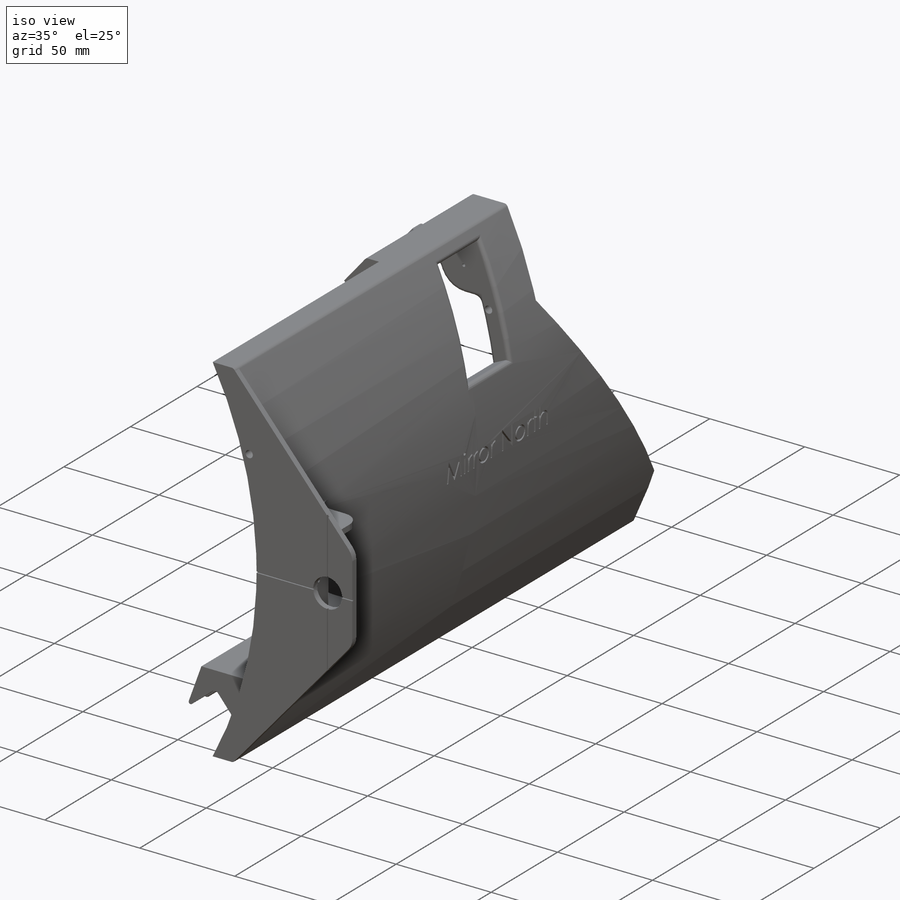
[diagram: iso view]
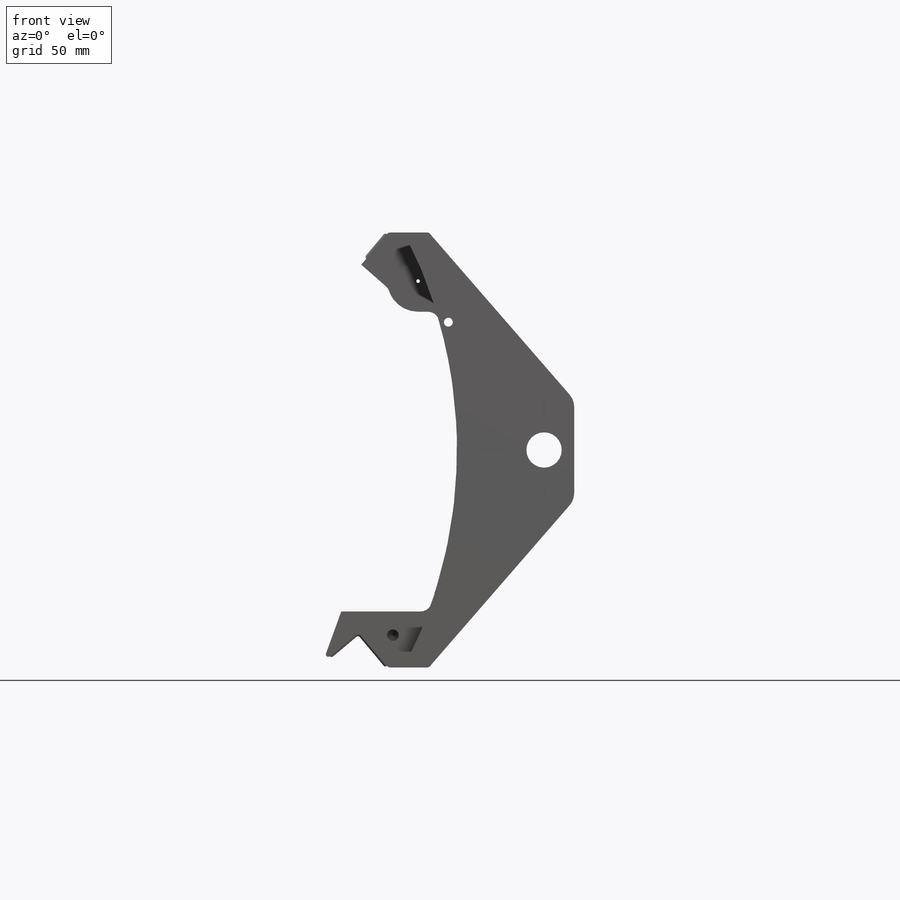
[diagram: front view]
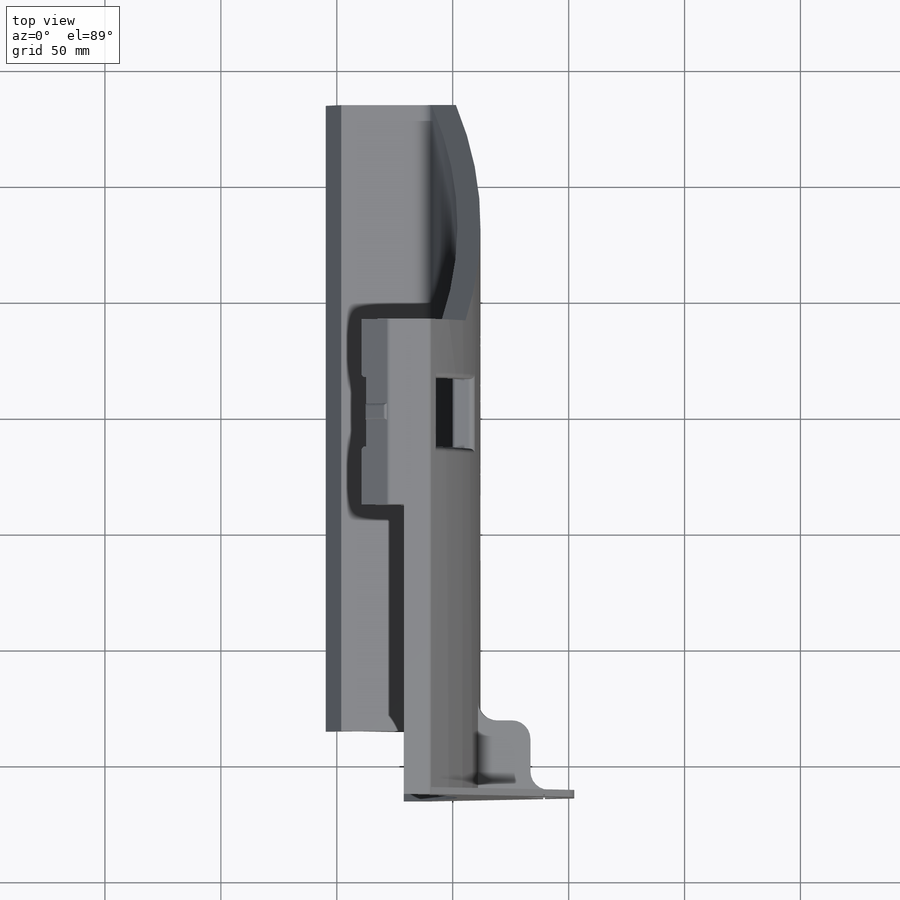
[diagram: top view]
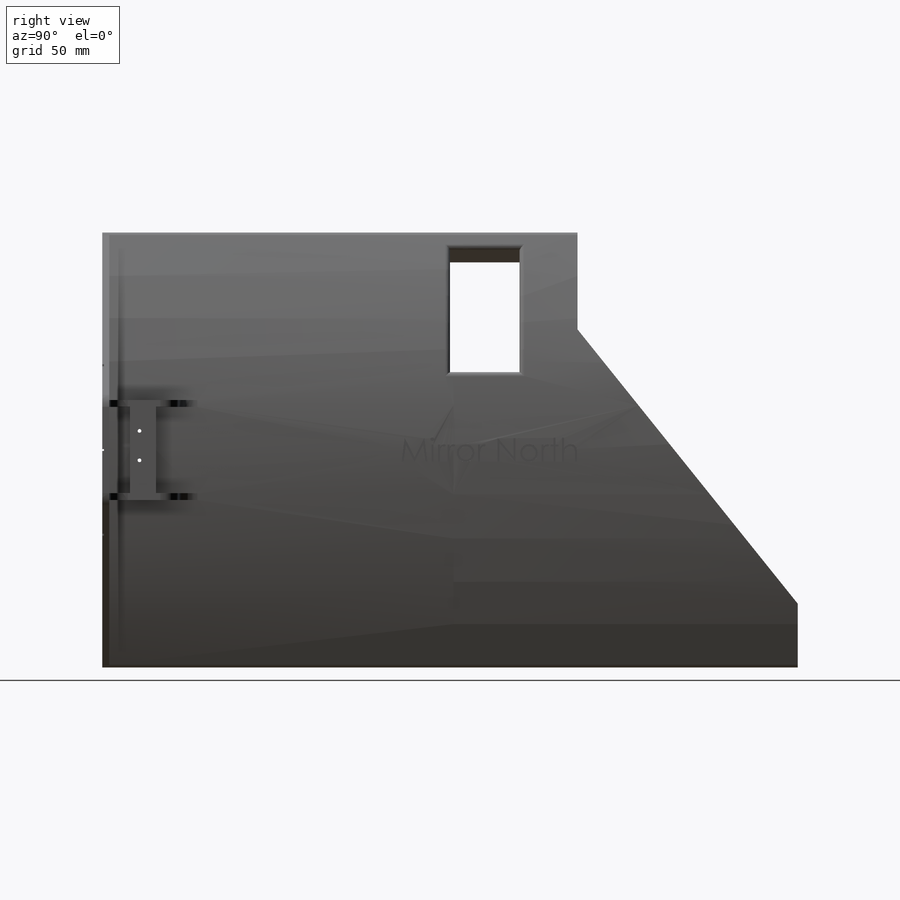
[diagram: right view]
SOLIDWORKS PART (.sldprt)
format: sldprt  version: not decoded by parser v0  size: 4,090,880 bytes
history: native  units: mm
features: sketch x33, cut_extrude x17, fillet x11, extrude x8, thread x5, mirror x4, plane x3, hole x3, boolean_combine x2, delete_body x2, material x1 (+11 scaffold rows collapsed)
feature tree (100):
  scaffold x11  (default folders/planes/origin — collapsed)
  material  "Material <not specified>"
  sketch  "Sketch1"  dims[c1.D1=430.4mm c1.D2=~367.695526mm c1.D3=22.0mm c1.D5=395.0mm c1.D7=424.0mm c1.D8=404.0mm c1.D4=188.0mm c1.D6=~810.320415mm c2.D6=~0.466058deg c3.D6=56.0mm c3.D9=123.0mm]
  sketch  "Sketch2"  dims[c1.D1=20.0mm c1.D2=19.05mm c2.D2=40.0deg c2.D5=~22.604805mm c3.D5=30.0deg c3.D4=3.0mm c3.D3=0.0mm c4.D4=5.0mm]
  extrude  "Boss-Extrude1"  Depth=135mm
  mirror  "Mirror1"
  sketch  "Sketch69"
  cut_extrude  "Cut-Extrude24"  [1 undecoded]
  sketch  "Sketch12"  dims[c1.D1=90.0mm c1.D7=20.32mm c1.D8=26.32mm c1.D9=12.7mm c1.D3=~3.472663mm c1.D4=~3.870576mm c1.D5=90.0mm c1.D6=45.0mm c1.D2=1.0mm c2.D5=1.0mm]
  cut_extrude  "circle cut"  Depth=15mm
  sketch  "Sketch70"
  cut_extrude  "Cut-Extrude25"  [1 undecoded]
  sketch  "Sketch17"
  cut_extrude  "Cut-Extrude14"  Depth=1mm
  sketch  "Sketch18"
  cut_extrude  "Cut-Extrude15"  [1 undecoded]
  mirror  "Mirror2"
  boolean_combine  "Combine1"
  boolean_combine  "Combine2"
  plane  "text plane"  Offset=212mm
  sketch  "Sketch19"  dims[c1.D1=20.32mm c1.D2=12.7mm c1.D3=24.0mm c1.D4=40.0mm c1.D5=24.0mm c2.D5=87.0deg]
  cut_extrude  "spring trench 1"  Depth=5mm
  sketch  "Sketch20"
  cut_extrude  "spring trench 2"  Depth=8mm
  sketch  "Sketch21"  dims[D1=1.5875mm D2=22.0mm]
  cut_extrude  "spring holes"  [1 undecoded]
  fillet  "Fillet1"  Radius=1mm
  fillet  "Fillet2"  Radius=2mm
  fillet  "Fillet3"  Radius=2mm
  fillet  "Fillet4"  Radius=1mm
  fillet  "Fillet6"  Radius=1mm
  fillet  "Fillet20"  Radius=5mm
  fillet  "Fillet21"  Radius=5mm
  fillet  "Fillet22"  Radius=2mm
  sketch  "Sketch22"  dims[D1=7.0mm]
  extrude  "Boss-Extrude2"  Depth=1mm
  sketch  "Sketch23"
  extrude  "Boss-Extrude3"  Depth=1mm
  sketch  "Sketch24"  dims[D1=1.0mm]
  extrude  "Boss-Extrude4"  Depth=7mm
  mirror  "Mirror3"
  fillet  "Fillet10"  Radius=1mm
  fillet  "Fillet11"  Radius=1mm
  sketch  "Sketch71"
  extrude  "Boss-Extrude20"  Depth=30mm
  sketch  "Sketch72"  dims[D3=15.24mm D1=43.18mm D2=239.4mm D4=13.0mm]
  extrude  "cross hair face"  Depth=3mm
  plane  "Plane1"  Offset=15mm
  plane  "laser plane"
  sketch  "Sketch28"  dims[D1=11.176mm D2=9.0mm]
  extrude  "Boss-Extrude22"  Depth=15.875mm
  sketch  "cross hair v"  dims[D1=0.75mm]
  cut_extrude  "Cut-Extrude26"  Depth=0.75mm
  sketch  "cross hair h"  dims[D1=0.75mm]
  cut_extrude  "Cut-Extrude27"  Depth=0.75mm
  sketch  "Sketch73"  dims[D1=3.0mm D2=30.0mm]
  extrude  "Boss-Extrude23"  Depth=10mm
  fillet  "Fillet23"  Radius=8mm
  hole  "1/4-20 Tapped Hole1"  Diameter=5.1054mm Depth=16.51mm
  sketch  "Sketch80"
  sketch  "Sketch79"  dims[hole-wizard template sketch: 50 standard entries collapsed; hole parameters above]
  thread  "Hole Thread45"  Diameter=12.7mm  [1 undecoded]
  sketch  "Sketch81"
  cut_extrude  "Cut-Extrude30"  [1 undecoded]
  mirror  "Mirror4"
  sketch  "holes deck 1"  dims[c1.D1=1.6mm c1.D2=4.064mm c1.D3=12.7mm c1.D4=4.064mm c2.D2=4.445mm c2.D4=4.064mm]
  hole  "M2x0.4 Tapped Hole1"  Diameter=1.6mm Depth=78.273935mm
  sketch  "Sketch75"
  sketch  "Sketch74"  dims[hole-wizard template sketch: 60 standard entries collapsed; hole parameters kept: c18.Thru Tap Drill Depth=~78.273935mm]
  thread  "Hole Thread41"  Diameter=2mm  [1 undecoded]
  thread  "Hole Thread42"  Diameter=2mm  [1 undecoded]
  hole  "M2x0.4 Tapped Hole2"  Diameter=1.6mm Depth=78.273935mm
  sketch  "Sketch77"  dims[D1=4.064mm D2=12.7mm D3=4.445mm]
  sketch  "Sketch76"  dims[hole-wizard template sketch: 60 standard entries collapsed; hole parameters kept: c18.Thru Tap Drill Depth=~78.273935mm]
  thread  "Hole Thread43"  Diameter=2mm  [1 undecoded]
  thread  "Hole Thread44"  Diameter=2mm  [1 undecoded]
  delete_body  "delete toggle"
  sketch  "Sketch78"  dims[D1=40.0mm D2=4.0mm]
  cut_extrude  "Cut-Extrude29"  [1 undecoded]
  sketch  "Sketch61"  dims[D1=5.0mm]
  cut_extrude  "Cut-Extrude22"  Depth=1.5mm
  sketch  "Sketch83"  dims[D1=0.0mm]
  cut_extrude  "Cut-Extrude33"  Depth=40mm
  sketch  "Sketch62"  dims[D1=5.0mm]
  cut_extrude  "Cut-Extrude23"  Depth=1.5mm
  sketch  "Sketch82"  dims[D1=40.0mm D2=4.0mm]
  cut_extrude  "Cut-Extrude32"  [1 undecoded]
  sketch  "Sketch84"  dims[D1=0.0mm]
  cut_extrude  "Cut-Extrude34"  Depth=40mm
  delete_body  "delete outer"
decode coverage: 60 of 85 modeling features carry decoded parameters
note: ~ marks probable driven/reference dimensions
note: 12 parameter values undecoded
summary: no parameter record found for 7 features
note: suppression state not decoded; provenance and decode notes live in map.json
